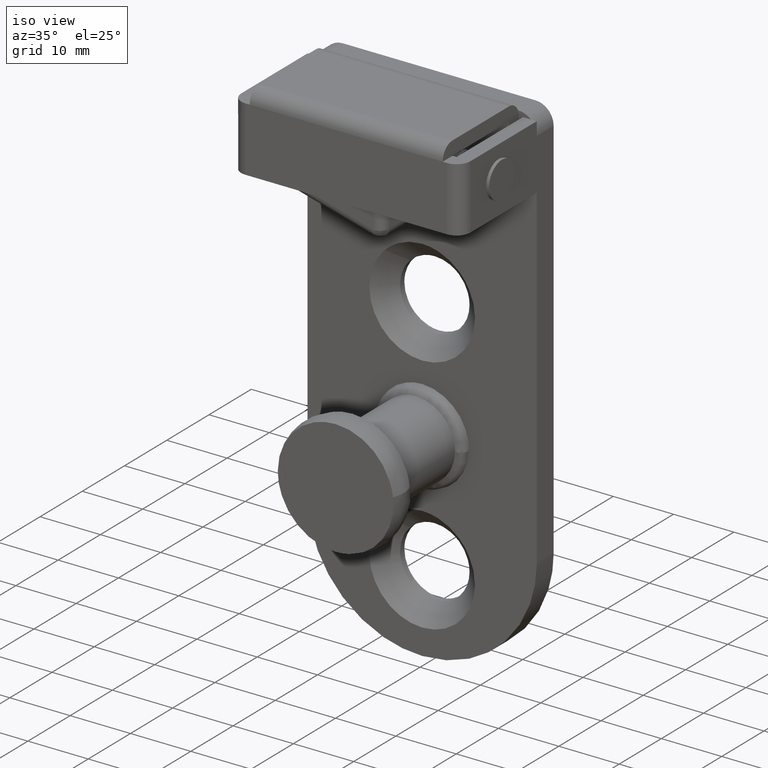
[diagram: clean part render]
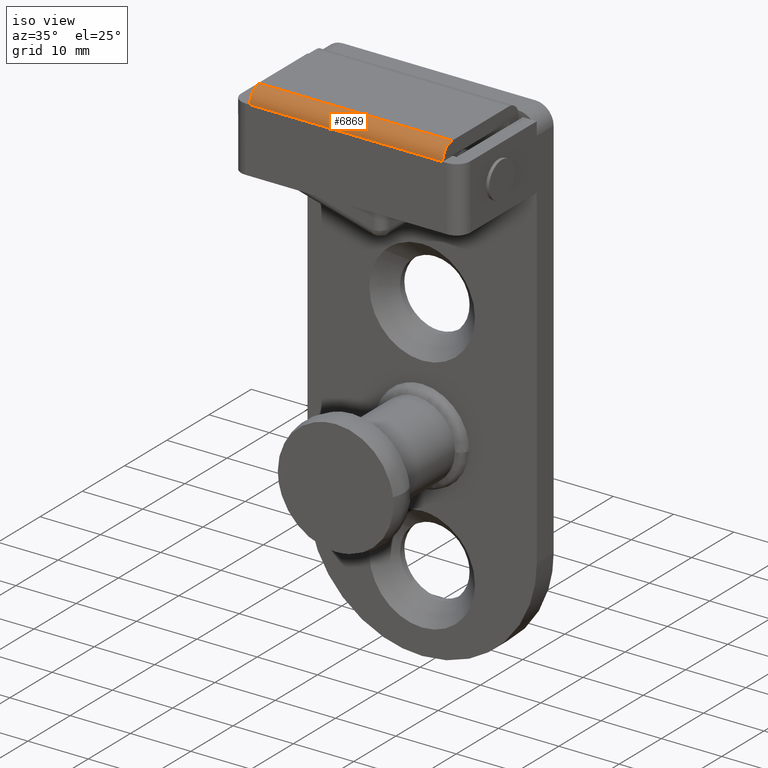
[diagram: same view with one face highlighted and labeled with its STEP entity id]
A machine part, iso view. The second image highlights one B-rep face of the part: STEP entity #6869.
In plain terms, the highlighted face is a freeform B-spline surface patch.
Its self-contained STEP definition (entity closure, byte-faithful):
#6810=CARTESIAN_POINT('',(-16.800000000000001,-4.860206981108111,54.499211847443782));
#6811=CARTESIAN_POINT('',(16.820000000000000,-4.860206981108111,54.499211847443782));
#6812=CARTESIAN_POINT('',(-16.800000000000008,-2.351057546233534,54.564916237750786));
#6813=CARTESIAN_POINT('',(16.820000000000004,-2.351057546233534,54.564916237750786));
#6814=CARTESIAN_POINT('',(-16.800000000000001,-2.504289963629702,52.059588359069842));
#6815=CARTESIAN_POINT('',(16.820000000000000,-2.504289963629702,52.059588359069842));
#6823=(BOUNDED_SURFACE()B_SPLINE_SURFACE(1,2,((#6810,#6812,#6814),(#6811,#6813,#6815)),.UNSPECIFIED.,.F.,.F.,.U.)B_SPLINE_SURFACE_WITH_KNOTS((2,2),(3,3),(0.0,33.620000000000012),(0.0,4.048096884204862),.UNSPECIFIED.)GEOMETRIC_REPRESENTATION_ITEM()RATIONAL_B_SPLINE_SURFACE(((1.0,0.675590207615660,1.0),(1.0,0.675590207615660,1.0)))REPRESENTATION_ITEM('')SURFACE());
#6824=CARTESIAN_POINT('',(16.0,-4.800000000000000,54.500000000000000));
#6825=VERTEX_POINT('',#6824);
#6826=CARTESIAN_POINT('',(16.0,-2.499999999999945,52.200000000000003));
#6827=VERTEX_POINT('',#6826);
#6828=CARTESIAN_POINT('',(16.0,-4.800000000000000,54.500000000000000));
#6829=CARTESIAN_POINT('',(16.000000000000011,-4.593009716264347,54.500071341480052));
#6830=CARTESIAN_POINT('',(15.999999999999980,-4.235535844574809,54.451378971046992));
#6831=CARTESIAN_POINT('',(16.000000000000021,-3.653306133783984,54.226941366759213));
#6832=CARTESIAN_POINT('',(15.999999999999989,-3.193186348978156,53.885746348481341));
#6833=CARTESIAN_POINT('',(16.0,-2.844338149967674,53.438409414417158));
#6834=CARTESIAN_POINT('',(16.0,-2.580716901369586,52.914884295029907));
#6835=CARTESIAN_POINT('',(16.000000000000021,-2.499743112231075,52.482297297902200));
#6836=CARTESIAN_POINT('',(16.0,-2.499999999999945,52.200000000000003));
#6837=B_SPLINE_CURVE_WITH_KNOTS('',3,(#6828,#6829,#6830,#6831,#6832,#6833,#6834,#6835,#6836),.UNSPECIFIED.,.F.,.U.,(4,1,1,1,1,1,4),(0.000000093079688,0.620969849425468,1.072591643051222,1.862902685642877,2.314515738938372,2.766146370897822,3.612922211971982),.UNSPECIFIED.);
#6838=EDGE_CURVE('',#6825,#6827,#6837,.T.);
#6839=ORIENTED_EDGE('',*,*,#6838,.T.);
#6840=CARTESIAN_POINT('',(-16.0,-2.499999999999945,52.200000000000003));
#6841=VERTEX_POINT('',#6840);
#6842=CARTESIAN_POINT('',(16.0,-2.499999999999945,52.200000000000003));
#6843=CARTESIAN_POINT('',(-16.0,-2.499999999999945,52.200000000000003));
#6844=QUASI_UNIFORM_CURVE('',1,(#6842,#6843),.UNSPECIFIED.,.F.,.U.);
#6845=EDGE_CURVE('',#6827,#6841,#6844,.T.);
#6846=ORIENTED_EDGE('',*,*,#6845,.T.);
#6847=CARTESIAN_POINT('',(-16.0,-4.800000000000000,54.500000000000000));
#6848=VERTEX_POINT('',#6847);
#6849=CARTESIAN_POINT('',(-16.0,-2.499999999999945,52.200000000000003));
#6850=CARTESIAN_POINT('',(-15.999999999999980,-2.499924696620190,52.406991885479357));
#6851=CARTESIAN_POINT('',(-16.000000000000039,-2.548609707422246,52.764472254021470));
#6852=CARTESIAN_POINT('',(-15.999999999999970,-2.745926904993076,53.276080307364047));
#6853=CARTESIAN_POINT('',(-16.000000000000050,-3.019785809040354,53.685918836930007));
#6854=CARTESIAN_POINT('',(-15.999999999999989,-3.375843079213222,54.024886518673583));
#6855=CARTESIAN_POINT('',(-16.000000000000028,-3.759215682961190,54.267657898226808));
#6856=CARTESIAN_POINT('',(-16.000000000000011,-4.235526933990748,54.451395517742363));
#6857=CARTESIAN_POINT('',(-15.999999999999980,-4.593007802110483,54.500071685365839));
#6858=CARTESIAN_POINT('',(-16.0,-4.800000000000000,54.500000000000000));
#6859=B_SPLINE_CURVE_WITH_KNOTS('',3,(#6849,#6850,#6851,#6852,#6853,#6854,#6855,#6856,#6857,#6858),.UNSPECIFIED.,.F.,.U.,(4,1,1,1,1,1,1,4),(0.000000093081860,0.620969849427372,1.072591643052649,1.637129347136311,2.088693044832811,2.540330662001106,2.991952455626567,3.612922211971982),.UNSPECIFIED.);
#6860=EDGE_CURVE('',#6841,#6848,#6859,.T.);
#6861=ORIENTED_EDGE('',*,*,#6860,.T.);
#6862=CARTESIAN_POINT('',(-16.0,-4.800000000000000,54.500000000000000));
#6863=CARTESIAN_POINT('',(16.0,-4.800000000000000,54.500000000000000));
#6864=QUASI_UNIFORM_CURVE('',1,(#6862,#6863),.UNSPECIFIED.,.F.,.U.);
#6865=EDGE_CURVE('',#6848,#6825,#6864,.T.);
#6866=ORIENTED_EDGE('',*,*,#6865,.T.);
#6867=EDGE_LOOP('',(#6839,#6846,#6861,#6866));
#6868=FACE_OUTER_BOUND('',#6867,.T.);
#6869=ADVANCED_FACE('',(#6868),#6823,.T.);